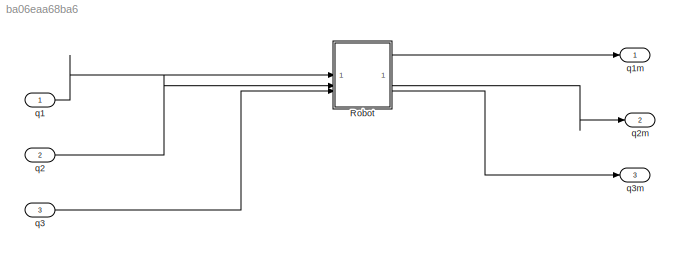
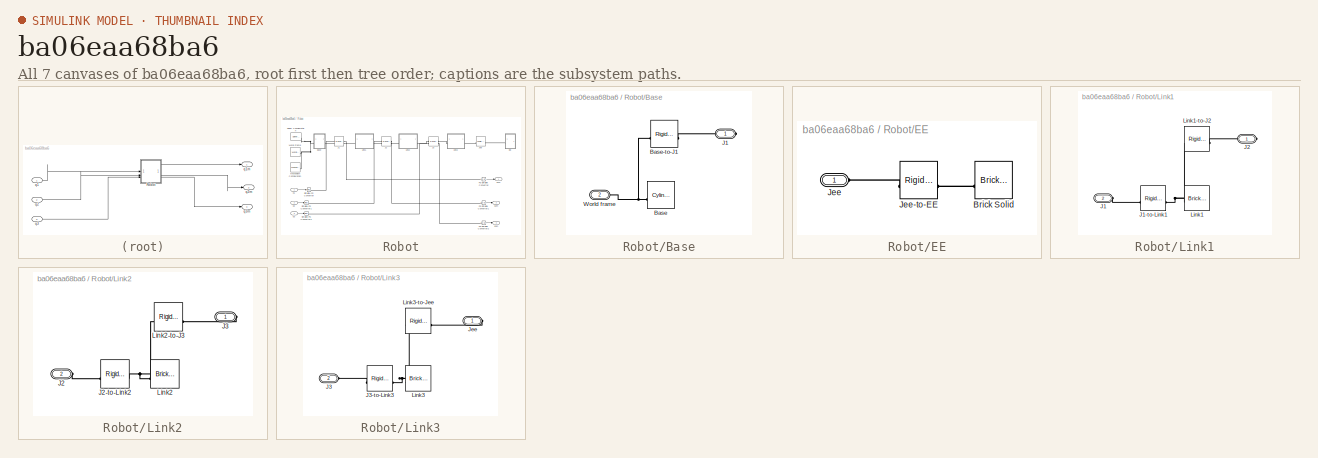
[diagram: thumbnail index - all 7 canvases of the model, root first then tree order]
MODEL slx_ba06eaa68ba6
KIND model
CONFIG AbsTol = auto
CONFIG EnableMultiTasking = off
CONFIG FixedStep = auto
CONFIG MaxStep = auto
CONFIG MinStep = auto
CONFIG RelTol = 1e-3
CONFIG SampleTimeConstraint = Unconstrained
CONFIG SolverName = VariableStepAuto
CONFIG StartTime = 0.0
CONFIG StopTime = 10.0
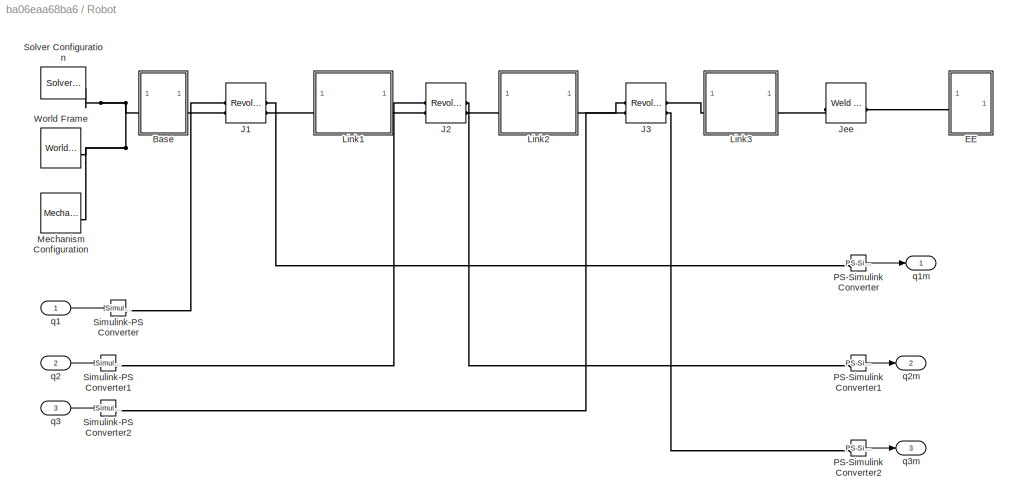
BLOCK [SubSystem] Robot
BLOCK [SubSystem] Robot/Base
BLOCK [Reference] Robot/Base/Base  REF=sm_lib/Body Elements/Cylindrical Solid
  NameLocation = top
  SourceBlock = sm_lib/Body Elements/Cylindrical Solid
  SourceType = Cylindrical Solid
BLOCK [Reference] Robot/Base/Base-to-J1  REF=sm_lib/Frames and
Transforms/Rigid
Transform
  SourceBlock = sm_lib/Frames and\nTransforms/Rigid\nTransform
  SourceType = Rigid\nTransform
BLOCK [PMIOPort] Robot/Base/J1
  Side = Right
BLOCK [PMIOPort] Robot/Base/World frame
  Port = 2
  Side = Left
BLOCK [SubSystem] Robot/EE
BLOCK [Reference] Robot/EE/Brick Solid  REF=sm_lib/Body Elements/Brick Solid
  NameLocation = top
  SourceBlock = sm_lib/Body Elements/Brick Solid
  SourceType = Brick Solid
BLOCK [PMIOPort] Robot/EE/Jee
  Side = Left
BLOCK [Reference] Robot/EE/Jee-to-EE  REF=sm_lib/Frames and
Transforms/Rigid
Transform
  SourceBlock = sm_lib/Frames and\nTransforms/Rigid\nTransform
  SourceType = Rigid\nTransform
BLOCK [Reference] Robot/J1  REF=sm_lib/Joints/Revolute Joint
  SourceBlock = sm_lib/Joints/Revolute Joint
  SourceType = Revolute Joint
BLOCK [Reference] Robot/J2  REF=sm_lib/Joints/Revolute Joint
  SourceBlock = sm_lib/Joints/Revolute Joint
  SourceType = Revolute Joint
BLOCK [Reference] Robot/J3  REF=sm_lib/Joints/Revolute Joint
  SourceBlock = sm_lib/Joints/Revolute Joint
  SourceType = Revolute Joint
BLOCK [Reference] Robot/Jee  REF=sm_lib/Joints/Weld Joint
  SourceBlock = sm_lib/Joints/Weld Joint
  SourceType = Weld Joint
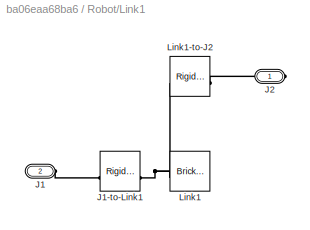
BLOCK [SubSystem] Robot/Link1
BLOCK [PMIOPort] Robot/Link1/J1
  Port = 2
  Side = Left
BLOCK [Reference] Robot/Link1/J1-to-Link1  REF=sm_lib/Frames and
Transforms/Rigid
Transform
  SourceBlock = sm_lib/Frames and\nTransforms/Rigid\nTransform
  SourceType = Rigid\nTransform
BLOCK [PMIOPort] Robot/Link1/J2
  Side = Right
BLOCK [Reference] Robot/Link1/Link1  REF=sm_lib/Body Elements/Brick Solid
  NameLocation = top
  SourceBlock = sm_lib/Body Elements/Brick Solid
  SourceType = Brick Solid
BLOCK [Reference] Robot/Link1/Link1-to-J2  REF=sm_lib/Frames and
Transforms/Rigid
Transform
  SourceBlock = sm_lib/Frames and\nTransforms/Rigid\nTransform
  SourceType = Rigid\nTransform
BLOCK [SubSystem] Robot/Link2
BLOCK [PMIOPort] Robot/Link2/J2
  Port = 2
  Side = Left
BLOCK [Reference] Robot/Link2/J2-to-Link2  REF=sm_lib/Frames and
Transforms/Rigid
Transform
  SourceBlock = sm_lib/Frames and\nTransforms/Rigid\nTransform
  SourceType = Rigid\nTransform
BLOCK [PMIOPort] Robot/Link2/J3
  Side = Right
BLOCK [Reference] Robot/Link2/Link2  REF=sm_lib/Body Elements/Brick Solid
  NameLocation = top
  SourceBlock = sm_lib/Body Elements/Brick Solid
  SourceType = Brick Solid
BLOCK [Reference] Robot/Link2/Link2-to-J3  REF=sm_lib/Frames and
Transforms/Rigid
Transform
  SourceBlock = sm_lib/Frames and\nTransforms/Rigid\nTransform
  SourceType = Rigid\nTransform
BLOCK [SubSystem] Robot/Link3
BLOCK [PMIOPort] Robot/Link3/J3
  Port = 2
  Side = Left
BLOCK [Reference] Robot/Link3/J3-to-Link3  REF=sm_lib/Frames and
Transforms/Rigid
Transform
  SourceBlock = sm_lib/Frames and\nTransforms/Rigid\nTransform
  SourceType = Rigid\nTransform
BLOCK [PMIOPort] Robot/Link3/Jee
  Side = Right
BLOCK [Reference] Robot/Link3/Link3  REF=sm_lib/Body Elements/Brick Solid
  NameLocation = top
  SourceBlock = sm_lib/Body Elements/Brick Solid
  SourceType = Brick Solid
BLOCK [Reference] Robot/Link3/Link3-to-Jee  REF=sm_lib/Frames and
Transforms/Rigid
Transform
  SourceBlock = sm_lib/Frames and\nTransforms/Rigid\nTransform
  SourceType = Rigid\nTransform
BLOCK [Reference] Robot/Mechanism Configuration  REF=sm_lib/Utilities/Mechanism
Configuration
  SourceBlock = sm_lib/Utilities/Mechanism\nConfiguration
  SourceType = Mechanism\nConfiguration
BLOCK [Reference] Robot/PS-Simulink Converter  REF=nesl_utility/PS-Simulink
Converter
  SourceBlock = nesl_utility/PS-Simulink\nConverter
  SourceType = PS-Simulink\nConverter
BLOCK [Reference] Robot/PS-Simulink Converter1  REF=nesl_utility/PS-Simulink
Converter
  SourceBlock = nesl_utility/PS-Simulink\nConverter
  SourceType = PS-Simulink\nConverter
BLOCK [Reference] Robot/PS-Simulink Converter2  REF=nesl_utility/PS-Simulink
Converter
  SourceBlock = nesl_utility/PS-Simulink\nConverter
  SourceType = PS-Simulink\nConverter
BLOCK [Reference] Robot/Simulink-PS Converter  REF=nesl_utility/Simulink-PS
Converter
  SourceBlock = nesl_utility/Simulink-PS\nConverter
  SourceType = Simulink-PS\nConverter
BLOCK [Reference] Robot/Simulink-PS Converter1  REF=nesl_utility/Simulink-PS
Converter
  SourceBlock = nesl_utility/Simulink-PS\nConverter
  SourceType = Simulink-PS\nConverter
BLOCK [Reference] Robot/Simulink-PS Converter2  REF=nesl_utility/Simulink-PS
Converter
  SourceBlock = nesl_utility/Simulink-PS\nConverter
  SourceType = Simulink-PS\nConverter
BLOCK [Reference] Robot/Solver Configuration  REF=nesl_utility/Solver
Configuration
  SourceBlock = nesl_utility/Solver\nConfiguration
  SourceType = Solver\nConfiguration
BLOCK [Reference] Robot/World Frame  REF=sm_lib/Frames and
Transforms/World Frame
  SourceBlock = sm_lib/Frames and\nTransforms/World Frame
  SourceType = World Frame
BLOCK [Inport] Robot/q1
BLOCK [Outport] Robot/q1m
BLOCK [Inport] Robot/q2
  Port = 2
BLOCK [Outport] Robot/q2m
  Port = 2
BLOCK [Inport] Robot/q3
  Port = 3
BLOCK [Outport] Robot/q3m
  Port = 3
BLOCK [Inport] q1
BLOCK [Outport] q1m
BLOCK [Inport] q2
  Port = 2
BLOCK [Outport] q2m
  Port = 2
BLOCK [Inport] q3
  Port = 3
BLOCK [Outport] q3m
  Port = 3
LINE Robot/PS-Simulink Converter1:1 -> Robot/q2m:1
LINE Robot/PS-Simulink Converter2:1 -> Robot/q3m:1
LINE Robot/PS-Simulink Converter:1 -> Robot/q1m:1
LINE Robot/q1:1 -> Robot/Simulink-PS Converter:1
LINE Robot/q2:1 -> Robot/Simulink-PS Converter1:1
LINE Robot/q3:1 -> Robot/Simulink-PS Converter2:1
LINE Robot:1 -> q1m:1
LINE Robot:2 -> q2m:1
LINE Robot:3 -> q3m:1
LINE q1:1 -> Robot:1
LINE q2:1 -> Robot:2
LINE q3:1 -> Robot:3
PNET net1: Robot/Base/Base-to-J1:LConn1 -- Robot/Base/Base:RConn1 -- Robot/Base/World frame:RConn1
PLINE Robot/Base/Base-to-J1:RConn1 -- Robot/Base/J1:RConn1
PNET net2: Robot/Base:LConn1 -- Robot/Mechanism Configuration:RConn1 -- Robot/Solver Configuration:RConn1 -- Robot/World Frame:RConn1
PLINE Robot/Base:RConn1 -- Robot/J1:LConn1
PLINE Robot/EE/Brick Solid:RConn1 -- Robot/EE/Jee-to-EE:RConn1
PLINE Robot/EE/Jee-to-EE:LConn1 -- Robot/EE/Jee:RConn1
PLINE Robot/EE:LConn1 -- Robot/Jee:RConn1
PLINE Robot/J1:LConn2 -- Robot/Simulink-PS Converter:RConn1
PLINE Robot/J1:RConn1 -- Robot/Link1:LConn1
PLINE Robot/J1:RConn2 -- Robot/PS-Simulink Converter:LConn1
PLINE Robot/J2:LConn1 -- Robot/Link1:RConn1
PLINE Robot/J2:LConn2 -- Robot/Simulink-PS Converter1:RConn1
PLINE Robot/J2:RConn1 -- Robot/Link2:LConn1
PLINE Robot/J2:RConn2 -- Robot/PS-Simulink Converter1:LConn1
PLINE Robot/J3:LConn1 -- Robot/Link2:RConn1
PLINE Robot/J3:LConn2 -- Robot/Simulink-PS Converter2:RConn1
PLINE Robot/J3:RConn1 -- Robot/Link3:LConn1
PLINE Robot/J3:RConn2 -- Robot/PS-Simulink Converter2:LConn1
PLINE Robot/Jee:LConn1 -- Robot/Link3:RConn1
PLINE Robot/Link1/J1-to-Link1:LConn1 -- Robot/Link1/J1:RConn1
PNET net3: Robot/Link1/J1-to-Link1:RConn1 -- Robot/Link1/Link1-to-J2:LConn1 -- Robot/Link1/Link1:RConn1
PLINE Robot/Link1/J2:RConn1 -- Robot/Link1/Link1-to-J2:RConn1
PLINE Robot/Link2/J2-to-Link2:LConn1 -- Robot/Link2/J2:RConn1
PNET net4: Robot/Link2/J2-to-Link2:RConn1 -- Robot/Link2/Link2-to-J3:LConn1 -- Robot/Link2/Link2:RConn1
PLINE Robot/Link2/J3:RConn1 -- Robot/Link2/Link2-to-J3:RConn1
PLINE Robot/Link3/J3-to-Link3:LConn1 -- Robot/Link3/J3:RConn1
PNET net5: Robot/Link3/J3-to-Link3:RConn1 -- Robot/Link3/Link3-to-Jee:LConn1 -- Robot/Link3/Link3:RConn1
PLINE Robot/Link3/Jee:RConn1 -- Robot/Link3/Link3-to-Jee:RConn1
note: PNET lines group multi-terminal physical nets as a canonical sorted terminal list (undirected conserving connections); 2-terminal nets keep the pairwise PLINE form
